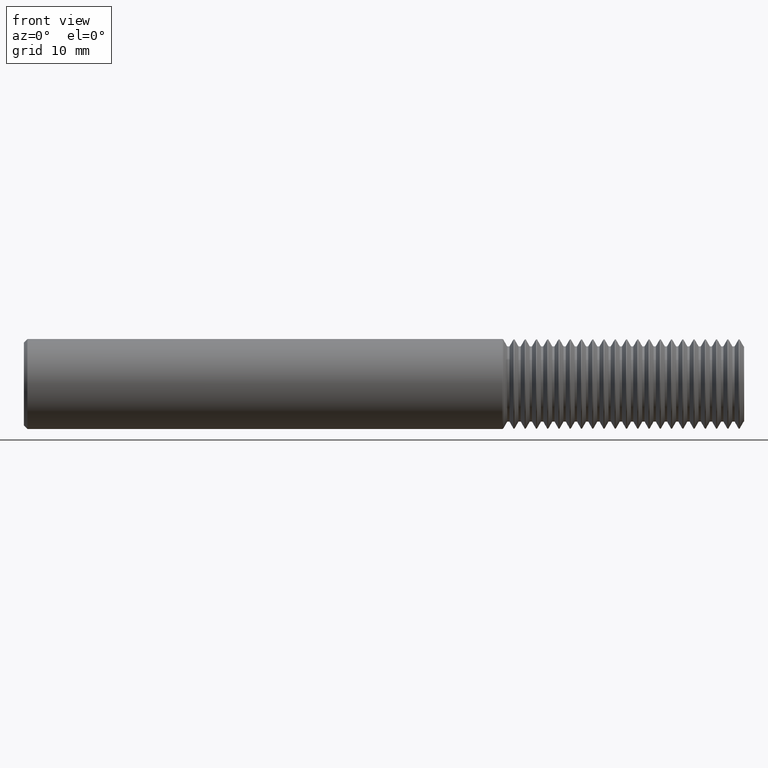
[diagram: clean part render]
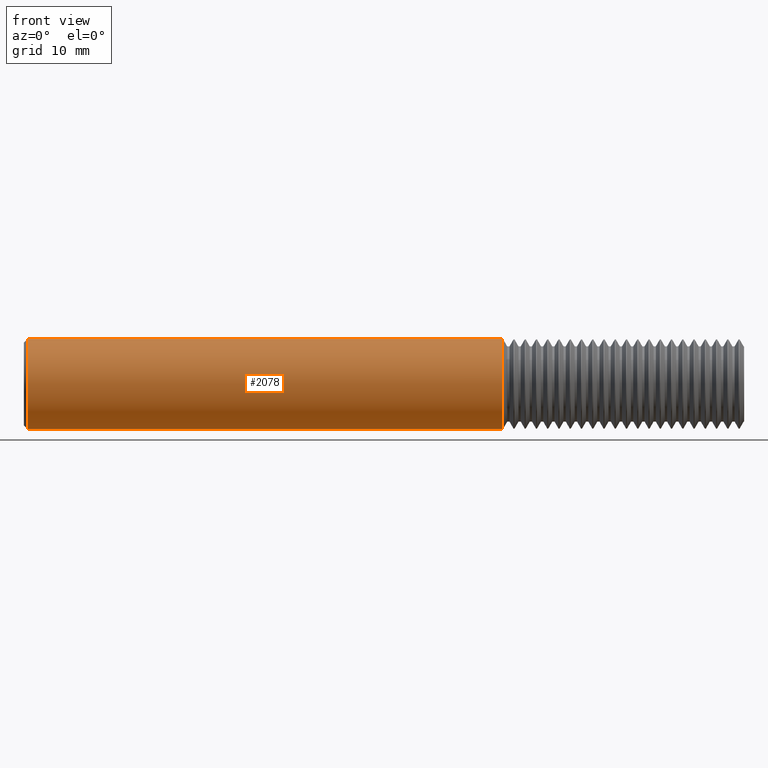
[diagram: same view with one face highlighted and labeled with its STEP entity id]
A machine part, front view. The second image highlights one B-rep face of the part: STEP entity #2078.
In plain terms, the highlighted cylindrical surface (partial cylindrical patch) has radius 6.3462 mm, axis along (1, -0, -0).
Its self-contained STEP definition (entity closure, byte-faithful):
#253 = LINE ( 'NONE', #1636, #3467 ) ;
#319 = CARTESIAN_POINT ( 'NONE',  ( 2.657649999999999402, 0.000000000000000000, 0.000000000000000000 ) ) ;
#761 = DIRECTION ( 'NONE',  ( 1.000000000000000000, -0.000000000000000000, -0.000000000000000000 ) ) ;
#841 = VERTEX_POINT ( 'NONE', #2874 ) ;
#957 = CARTESIAN_POINT ( 'NONE',  ( 4.000000000000000000, 0.000000000000000000, -0.2498499999999999888 ) ) ;
#1108 = CARTESIAN_POINT ( 'NONE',  ( 0.01999999999999978531, 0.000000000000000000, -0.2498499999999999888 ) ) ;
#1316 = FACE_OUTER_BOUND ( 'NONE', #1916, .T. ) ;
#1526 = ORIENTED_EDGE ( 'NONE', *, *, #2365, .T. ) ;
#1546 = ORIENTED_EDGE ( 'NONE', *, *, #2514, .F. ) ;
#1636 = CARTESIAN_POINT ( 'NONE',  ( 4.000000000000000000, 3.059780027669661931E-17, 0.2498499999999999888 ) ) ;
#1752 = AXIS2_PLACEMENT_3D ( 'NONE', #2298, #3717, #1967 ) ;
#1798 = DIRECTION ( 'NONE',  ( 0.000000000000000000, 0.000000000000000000, -1.000000000000000000 ) ) ;
#1916 = EDGE_LOOP ( 'NONE', ( #1546, #1526, #3708, #3754 ) ) ;
#1932 = DIRECTION ( 'NONE',  ( 1.000000000000000000, -0.000000000000000000, -0.000000000000000000 ) ) ;
#1952 = VERTEX_POINT ( 'NONE', #2259 ) ;
#1967 = DIRECTION ( 'NONE',  ( 0.000000000000000000, 0.000000000000000000, 1.000000000000000000 ) ) ;
#2043 = AXIS2_PLACEMENT_3D ( 'NONE', #319, #761, #1798 ) ;
#2069 = VERTEX_POINT ( 'NONE', #3093 ) ;
#2078 = ADVANCED_FACE ( 'NONE', ( #1316 ), #2747, .T. ) ;
#2083 = EDGE_CURVE ( 'NONE', #2612, #1952, #4428, .T. ) ;
#2131 = VECTOR ( 'NONE', #1932, 39.37007874015748143 ) ;
#2259 = CARTESIAN_POINT ( 'NONE',  ( 2.657649999999999402, 0.000000000000000000, -0.2498499999999999888 ) ) ;
#2298 = CARTESIAN_POINT ( 'NONE',  ( 0.01999999999999978531, 0.000000000000000000, 0.000000000000000000 ) ) ;
#2342 = DIRECTION ( 'NONE',  ( 1.000000000000000000, -0.000000000000000000, -0.000000000000000000 ) ) ;
#2365 = EDGE_CURVE ( 'NONE', #2069, #2612, #2658, .T. ) ;
#2514 = EDGE_CURVE ( 'NONE', #2069, #841, #253, .T. ) ;
#2612 = VERTEX_POINT ( 'NONE', #1108 ) ;
#2658 = CIRCLE ( 'NONE', #1752, 0.2498499999999999888 ) ;
#2679 = EDGE_CURVE ( 'NONE', #841, #1952, #2720, .T. ) ;
#2704 = DIRECTION ( 'NONE',  ( 0.000000000000000000, 0.000000000000000000, -1.000000000000000000 ) ) ;
#2720 = CIRCLE ( 'NONE', #2043, 0.2498499999999999888 ) ;
#2735 = AXIS2_PLACEMENT_3D ( 'NONE', #4172, #3401, #2704 ) ;
#2747 = CYLINDRICAL_SURFACE ( 'NONE', #2735, 0.2498499999999999888 ) ;
#2874 = CARTESIAN_POINT ( 'NONE',  ( 2.657649999999999402, 3.059780027669661931E-17, 0.2498499999999999888 ) ) ;
#3093 = CARTESIAN_POINT ( 'NONE',  ( 0.01999999999999978531, 3.059780027669661931E-17, 0.2498499999999999888 ) ) ;
#3401 = DIRECTION ( 'NONE',  ( 1.000000000000000000, -0.000000000000000000, -0.000000000000000000 ) ) ;
#3467 = VECTOR ( 'NONE', #2342, 39.37007874015748143 ) ;
#3708 = ORIENTED_EDGE ( 'NONE', *, *, #2083, .T. ) ;
#3717 = DIRECTION ( 'NONE',  ( 1.000000000000000000, -0.000000000000000000, -0.000000000000000000 ) ) ;
#3754 = ORIENTED_EDGE ( 'NONE', *, *, #2679, .F. ) ;
#4172 = CARTESIAN_POINT ( 'NONE',  ( 4.000000000000000000, 0.000000000000000000, 0.000000000000000000 ) ) ;
#4428 = LINE ( 'NONE', #957, #2131 ) ;